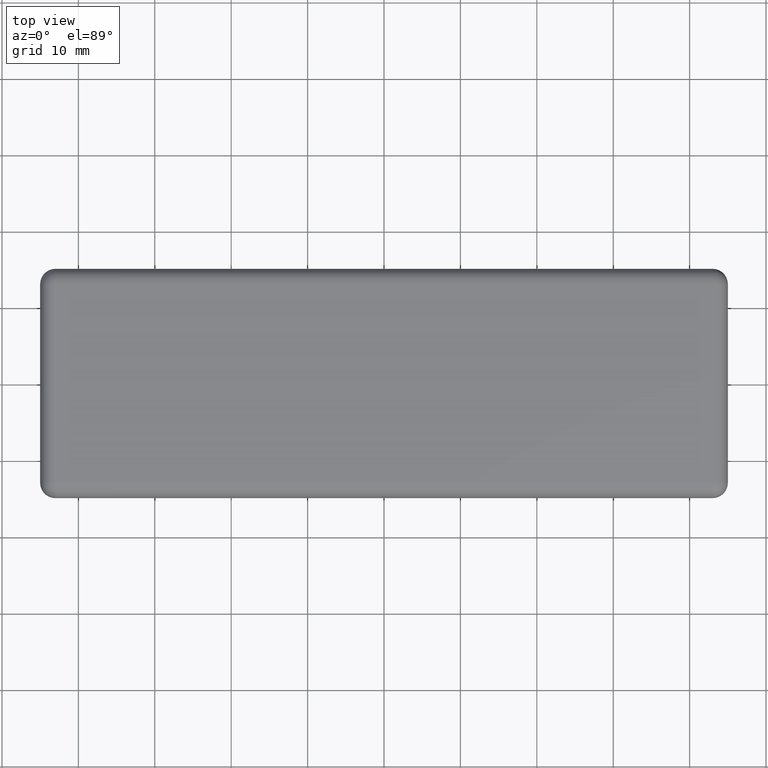
[diagram: clean part render]
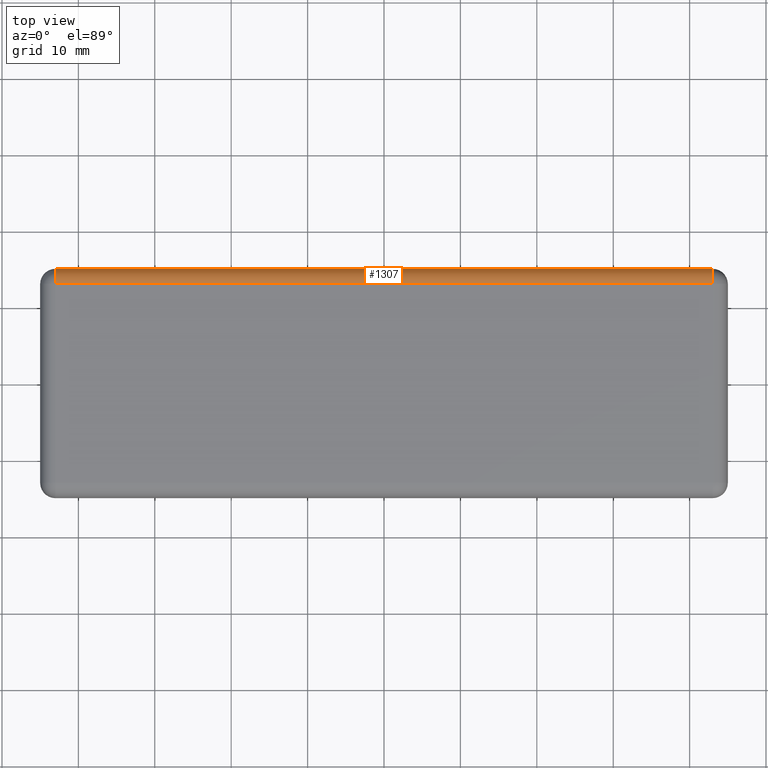
[diagram: same view with one face highlighted and labeled with its STEP entity id]
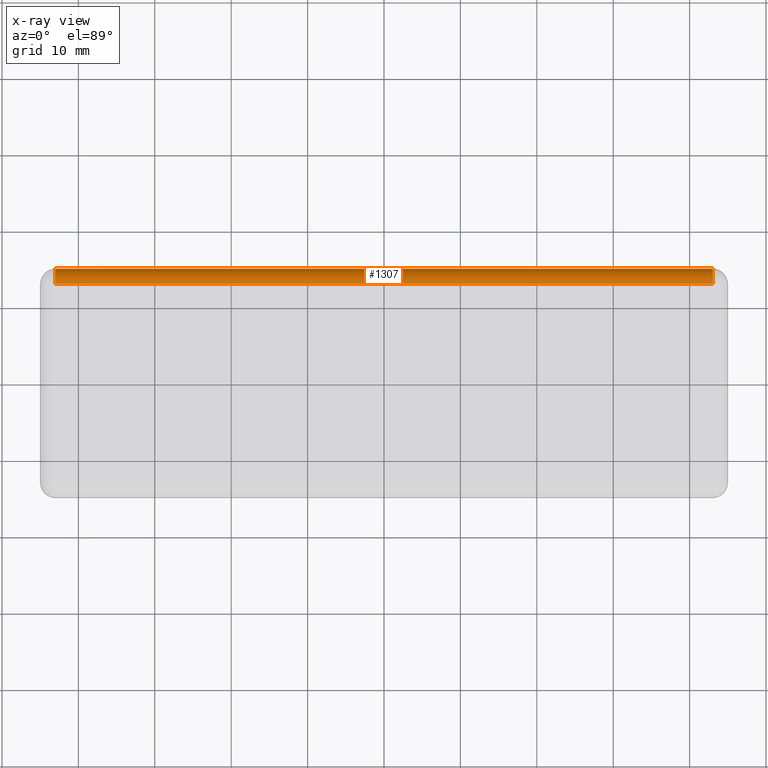
[diagram: x-ray of the same camera — body ghosted, the highlighted face saturated]
A machine part, top view. The second image highlights one B-rep face of the part: STEP entity #1307.
The next image is the same camera in x-ray: the body ghosted, the highlighted face saturated — about 0% of this face is hidden behind the body in this view.
In plain terms, the highlighted cylindrical surface (edge-blend (fillet) strip) has radius 2 mm, axis along (-1, -0, 0).
Its self-contained STEP definition (entity closure, byte-faithful):
#20=CYLINDRICAL_SURFACE('',#1447,2.);
#159=FACE_OUTER_BOUND('',#236,.T.);
#236=EDGE_LOOP('',(#1177,#1178,#1179,#1180));
#320=LINE('',#2185,#424);
#342=LINE('',#2262,#446);
#424=VECTOR('',#1732,86.);
#446=VECTOR('',#1816,86.);
#509=CIRCLE('',#1435,2.);
#515=CIRCLE('',#1444,2.);
#614=VERTEX_POINT('',#2179);
#616=VERTEX_POINT('',#2183);
#633=VERTEX_POINT('',#2236);
#638=VERTEX_POINT('',#2252);
#788=EDGE_CURVE('',#614,#616,#320,.T.);
#813=EDGE_CURVE('',#633,#614,#509,.F.);
#822=EDGE_CURVE('',#616,#638,#515,.F.);
#826=EDGE_CURVE('',#638,#633,#342,.T.);
#1177=ORIENTED_EDGE('',*,*,#813,.T.);
#1178=ORIENTED_EDGE('',*,*,#788,.T.);
#1179=ORIENTED_EDGE('',*,*,#822,.T.);
#1180=ORIENTED_EDGE('',*,*,#826,.T.);
#1307=ADVANCED_FACE('',(#159),#20,.T.);
#1435=AXIS2_PLACEMENT_3D('',#2237,#1785,#1786);
#1444=AXIS2_PLACEMENT_3D('',#2254,#1806,#1807);
#1447=AXIS2_PLACEMENT_3D('',#2261,#1814,#1815);
#1732=DIRECTION('',(1.,2.46716227694479E-16,0.));
#1785=DIRECTION('center_axis',(-1.,0.,0.));
#1786=DIRECTION('ref_axis',(0.,1.,0.));
#1806=DIRECTION('center_axis',(1.,0.,0.));
#1807=DIRECTION('ref_axis',(0.,0.,1.));
#1814=DIRECTION('center_axis',(-1.,-2.46716227694479E-16,0.));
#1815=DIRECTION('ref_axis',(0.,0.707106781186548,0.707106781186547));
#1816=DIRECTION('',(-1.,-2.46716227694479E-16,0.));
#2179=CARTESIAN_POINT('',(-43.,13.,3.));
#2183=CARTESIAN_POINT('',(43.,13.,3.));
#2185=CARTESIAN_POINT('',(22.5,13.,3.));
#2236=CARTESIAN_POINT('',(-43.,15.,1.));
#2237=CARTESIAN_POINT('Origin',(-43.,13.,1.));
#2252=CARTESIAN_POINT('',(43.,15.,1.));
#2254=CARTESIAN_POINT('Origin',(43.,13.,1.));
#2261=CARTESIAN_POINT('Origin',(22.5,13.,1.));
#2262=CARTESIAN_POINT('',(22.5,15.,1.));